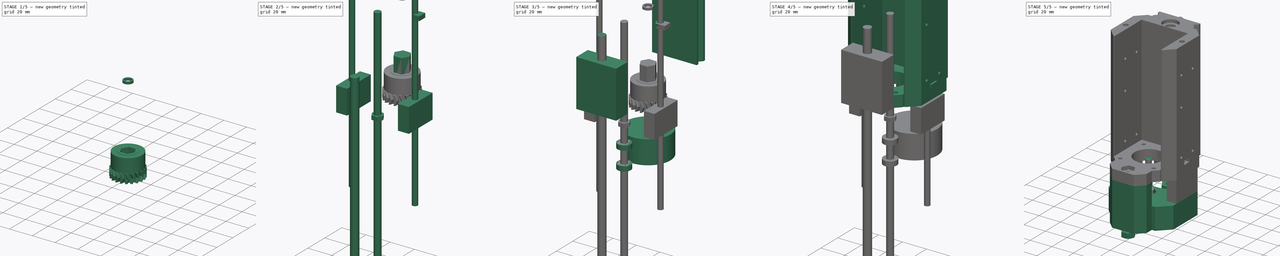
[diagram: build sequence overview — one tinted view per stage of 5, left to right]
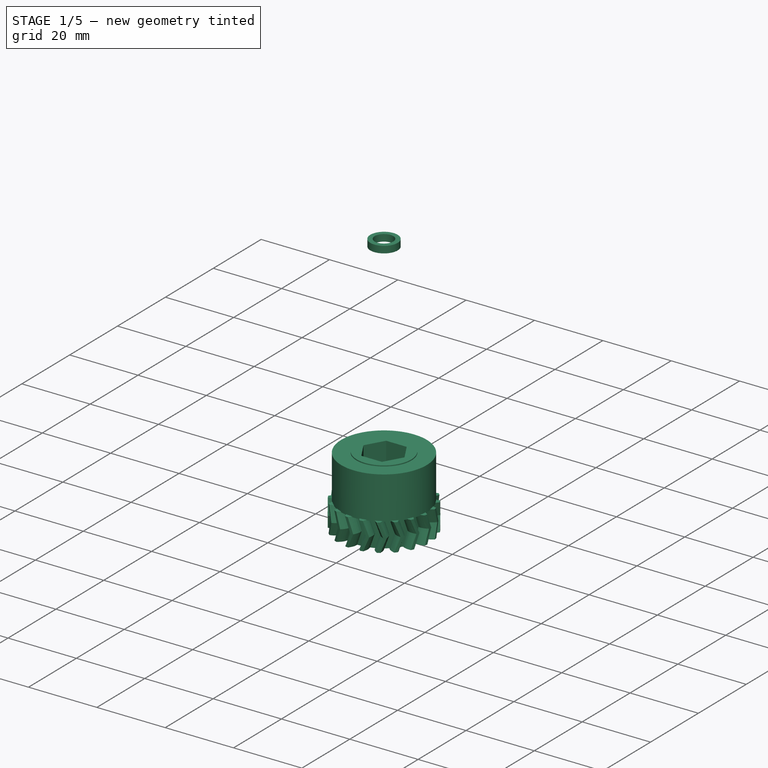
[diagram: stage 1 of 5 — iso view after this stage's code; geometry added in this stage tinted green]
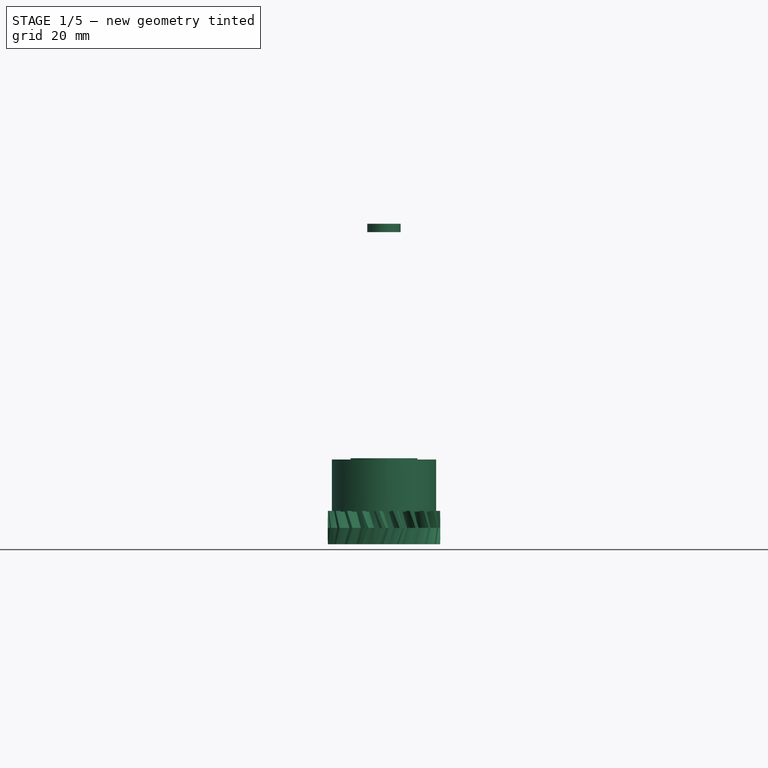
[diagram: stage 1 of 5 — front view after this stage's code; geometry added in this stage tinted green]
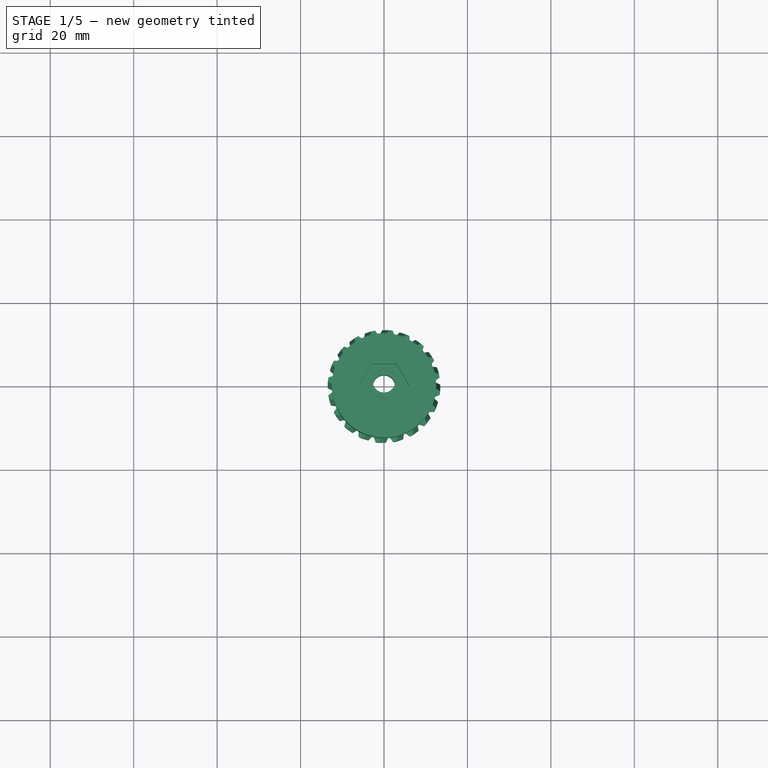
[diagram: stage 1 of 5 — top view after this stage's code; geometry added in this stage tinted green]
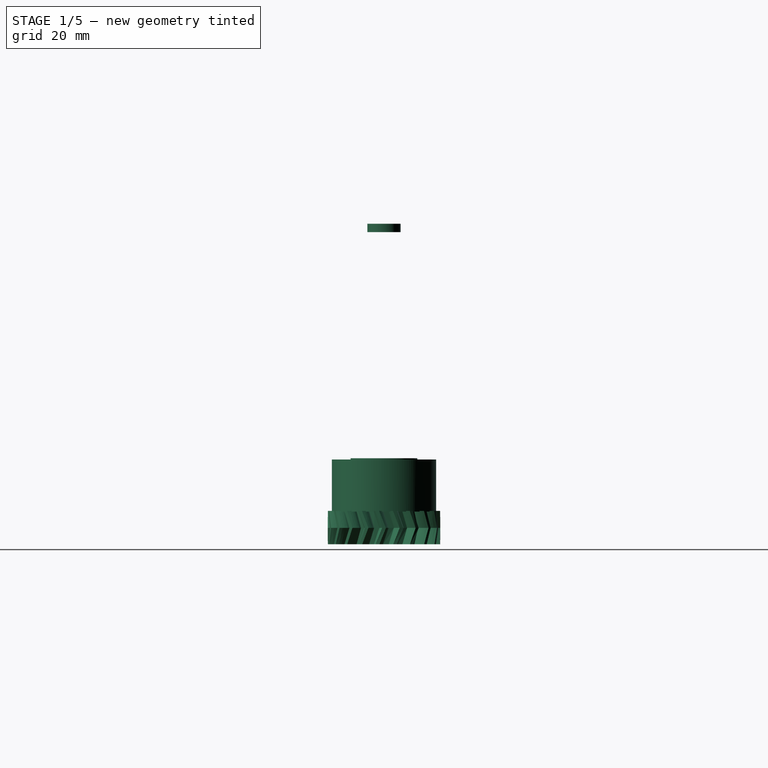
[diagram: stage 1 of 5 — right view after this stage's code; geometry added in this stage tinted green]
FCSTD DOCUMENT  (FreeCAD 0.17R12284 (Git))
Label: prac
License: All rights reserved
LicenseURL: http://en.wikipedia.org/wiki/All_rights_reserved
objects: Part::Cylinder×43, Part::MultiFuse×31, Part::Cut×16, Part::Box×15, Part::Feature×12, Part::FeaturePython×10, Part::Extrusion×9, Sketcher::SketchObject×7, Part::Chamfer×5, App::Part×2, Part::RegularPolygon×2
note: 150 computed .brp shape members not serialized (recipe doc carries the construction recipe); baked Part::Feature solids carry a one-line shape summary decoded from their .brp

FEATURE [Part::RegularPolygon] RegularPolygon009  label="Pravidelný n-úhelník009"
  AttacherType = Attacher::AttachEngine3D
  Circumradius = 6
  Polygon = 6
FEATURE [Part::Extrusion] Extrude067
  Base = -> RegularPolygon009
  Dir = (0,0,1)
  DirMode = 2
  FaceMakerClass = Part::FaceMakerBullseye
  LengthFwd = 8
  LengthRev = 0
  Placement = pos=(0,0,13) rot=(0,0,1;0rad)
  Solid = true
  Symmetric = false
FEATURE [Sketcher::SketchObject] Sketch038
  MapMode = 45
  Placement = pos=(44.88,21.011,5.40003) rot=(0.707106,0.001666,0.707106;3.13826rad)
  sketch-geometry (7):
    g0: LineSegment StartX=5.21891 StartY=0.0364138 StartZ=0 EndX=2.62121 EndY=4.46293 EndZ=0
    g1: LineSegment StartX=2.62121 StartY=4.46293 StartZ=0 EndX=-2.51111 EndY=4.42651 EndZ=0
    g2: LineSegment StartX=-2.51111 StartY=4.42651 StartZ=0 EndX=-5.04574 EndY=-0.0364138 EndZ=0
    g3: LineSegment StartX=-5.04574 StartY=-0.0364138 StartZ=0 EndX=-2.44804 EndY=-4.46293 EndZ=0
    g4: LineSegment StartX=-2.44804 StartY=-4.46293 StartZ=0 EndX=2.68428 EndY=-4.42651 EndZ=0
    g5: LineSegment StartX=2.68428 StartY=-4.42651 StartZ=0 EndX=5.21891 EndY=0.0364138 EndZ=0
    g6: Circle [constr] CenterX=0.0865834 CenterY=0 CenterZ=0 NormalX=0 NormalY=0 NormalZ=1 AngleXU=0 Radius=5.13245
  constraints (14):
    c: Coincident(g0,g1)
    c: Coincident(g1,g2)
    c: Coincident(g2,g3)
    c: Coincident(g3,g4)
    c: Coincident(g4,g5)
    c: Coincident(g5,g0)
    c: Equal(g0, g1-g5) x5
    c: PointOnObject(g0,g6)
    c: PointOnObject(g1,g6)
    c: PointOnObject(g2,g6)
    c: PointOnObject(g3,g6)
    c: PointOnObject(g4,g6)
    c: PointOnObject(g5,g6)
    c: PointOnObject(g6,g-1)
FEATURE [Part::Extrusion] Extrude066
  Base = -> Sketch038
  Dir = (1,0,0)
  DirMode = 2
  FaceMakerClass = Part::FaceMakerBullseye
  LengthFwd = 5
  LengthRev = 0
  Placement = pos=(0,0,0.25) rot=(0,0,1;0rad)
  Solid = true
  Symmetric = false
FEATURE [Part::Feature] Cylinder014005649  label="Válec566"
  Placement = pos=(0,0,0) rot=(0,0,1;2.0944rad)
  shape: bbox 5 x 5 x 7 mm, 3 faces (baked)
FEATURE [Part::Feature] Cylinder014005650  label="Válec567"
  shape: bbox 5 x 5 x 7 mm, 3 faces (baked)
FEATURE [Part::Feature] Screw_solid132  label="M2x4-Screw (Solid)132"
  Placement = pos=(0,0,0) rot=(0,0,1;1.0472rad)
  shape: bbox 3.6 x 3.6 x 4 mm, 12 faces (baked)
FEATURE [Part::Feature] Cylinder014005651  label="Válec568"
  Placement = pos=(0,0,0) rot=(0,0,1;4.18879rad)
  shape: bbox 5 x 5 x 7 mm, 3 faces (baked)
FEATURE [Part::MultiFuse] Fusion393
  Shapes = -> [Cylinder014005651,Cylinder014005650,Cylinder014005649]
FEATURE [Part::Feature] Screw_solid133  label="M2x4-Screw (Solid)133"
  Placement = pos=(0,0,0) rot=(0,0,-1;1.0472rad)
  shape: bbox 3.6 x 3.6 x 4 mm, 12 faces (baked)
FEATURE [Part::Feature] Screw_solid134  label="M2x4-Screw (Solid)134"
  Placement = pos=(0,0,0) rot=(0,0,1;3.14159rad)
  shape: bbox 3.6 x 3.6 x 4 mm, 12 faces (baked)
FEATURE [Part::MultiFuse] Fusion395  label="srouby045"
  Placement = pos=(0,0,0.5) rot=(0,0,1;0rad)
  Shapes = -> [Screw_solid132,Screw_solid133,Screw_solid134]
FEATURE [Part::Cylinder] Cylinder014005652  label="Válec569"
  Angle = 360
  AttacherType = Attacher::AttachEngine3D
  Height = 22
  Radius = 2.6
FEATURE [Part::MultiFuse] Fusion396
  Shapes = -> [Cylinder014005652,Extrude066]
FEATURE [Part::Cylinder] Cylinder014005653  label="Válec570"
  Angle = 360
  AttacherType = Attacher::AttachEngine3D
  Height = 7
  Radius = 2.6
FEATURE [Part::MultiFuse] Fusion392
  Placement = pos=(0,0,1) rot=(0,0,1;0rad)
  Shapes = -> [Fusion393,Cylinder014005653]
FEATURE [Part::Cylinder] Cylinder014005654  label="Válec571"
  Angle = 360
  AttacherType = Attacher::AttachEngine3D
  Height = 6
  Placement = pos=(0,0,7) rot=(0,0,1;0rad)
  Radius = 6.5
FEATURE [Part::Cylinder] Cylinder014005536  label="Unasec vrch027"
  Angle = 360
  AttacherType = Attacher::AttachEngine3D
  Height = 1.5
  Placement = pos=(0,0,5.5) rot=(0,0,1;0rad)
  Radius = 15.5
FEATURE [Part::Cut] Cut061228  label="unasec vrch027"
  Base = -> Cylinder014005536
  Tool = -> Fusion395
FEATURE [Part::Cut] Cut061230  label="Unasec Vrch zaklad027"
  Base = -> Cut061228
  Tool = -> Fusion392
FEATURE [Part::MultiFuse] Fusion394
  Shapes = -> [Cut061230,Cylinder014005654,Extrude067]
FEATURE [Part::Cut] Cut061229  label="unasec top009"
  Base = -> Fusion394
  Placement = pos=(0,0,-42) rot=(1,0,0;3.14159rad)
  Tool = -> Fusion396
FEATURE [Part::Cylinder] Cylinder014005842  label="Válec736"
  Angle = 360
  AttacherType = Attacher::AttachEngine3D
  Height = 12.5
  Placement = pos=(0,0,-68) rot=(0,0,1;0rad)
  Radius = 12.5
FEATURE [Part::Cylinder] Cylinder014005846  label="Válec739"
  Angle = 360
  AttacherType = Attacher::AttachEngine3D
  Height = 20.9
  Placement = pos=(0,0,-76.1) rot=(0,0,1;0rad)
  Radius = 8
FEATURE [Part::FeaturePython] InvoluteGear033  # WARN: FeaturePython — macro-defined, semantics opaque (R4)
  Placement = pos=(0,0,-71.9) rot=(0,0,1;0rad)
  backlash = 0
  beta = -20
  clearance = 0.25
  double_helix = true
  head = 0
  height = 8.2
  module = 1.16
  numpoints = 6
  pressure_angle = 20
  reversed_backlash = false
  shift = 0
  simple = false
  teeth = 20
  undercut = false
FEATURE [Part::Cylinder] Cylinder014005847  label="Válec740"
  Angle = 360
  AttacherType = Attacher::AttachEngine3D
  Height = 2
  Placement = pos=(0,0,-1) rot=(0,0,1;0rad)
  Radius = 4
FEATURE [Part::Cylinder] Cylinder014005848  label="Válec741"
  Angle = 360
  AttacherType = Attacher::AttachEngine3D
  Height = 3
  Placement = pos=(0,0,-1) rot=(0,0,1;0rad)
  Radius = 2.7
FEATURE [Part::Cut] Cut061311  label="podlozka"
  Base = -> Cylinder014005847
  Tool = -> Cylinder014005848
FEATURE [Part::Cylinder] Cylinder014005849  label="Válec742"
  Angle = 360
  AttacherType = Attacher::AttachEngine3D
  Height = 4
  Placement = pos=(0,0,-79.8) rot=(0,0,1;0rad)
  Radius = 15
FEATURE [Part::Cylinder] Cylinder014005841  label="Válec735"
  Angle = 360
  AttacherType = Attacher::AttachEngine3D
  Height = 56
  Placement = pos=(0,0,-84) rot=(0,0,1;0rad)
  Radius = 2.65
FEATURE [Part::MultiFuse] Fusion462
  Shapes = -> [Cylinder014005842,InvoluteGear033,Cylinder014005846]
FEATURE [Part::MultiFuse] Fusion463
  Shapes = -> [Cylinder014005841,Cut061229]
FEATURE [Part::Cut] Cut061312
  Base = -> Fusion462
  Tool = -> Fusion463
FEATURE [Part::Cut] Cut061313
  Base = -> Cut061312
  Tool = -> Cylinder014005849
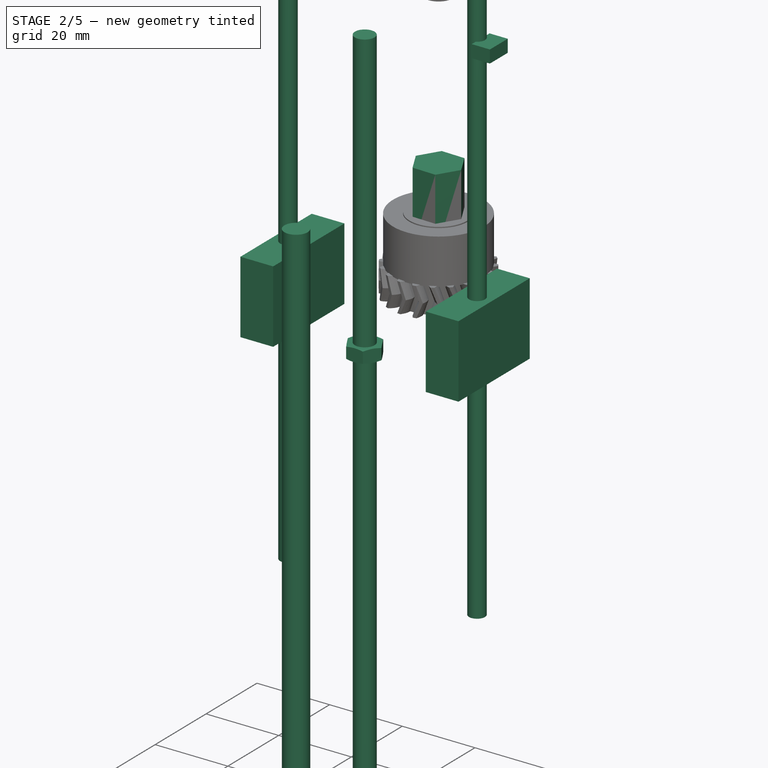
[diagram: stage 2 of 5 — iso view after this stage's code; geometry added in this stage tinted green]
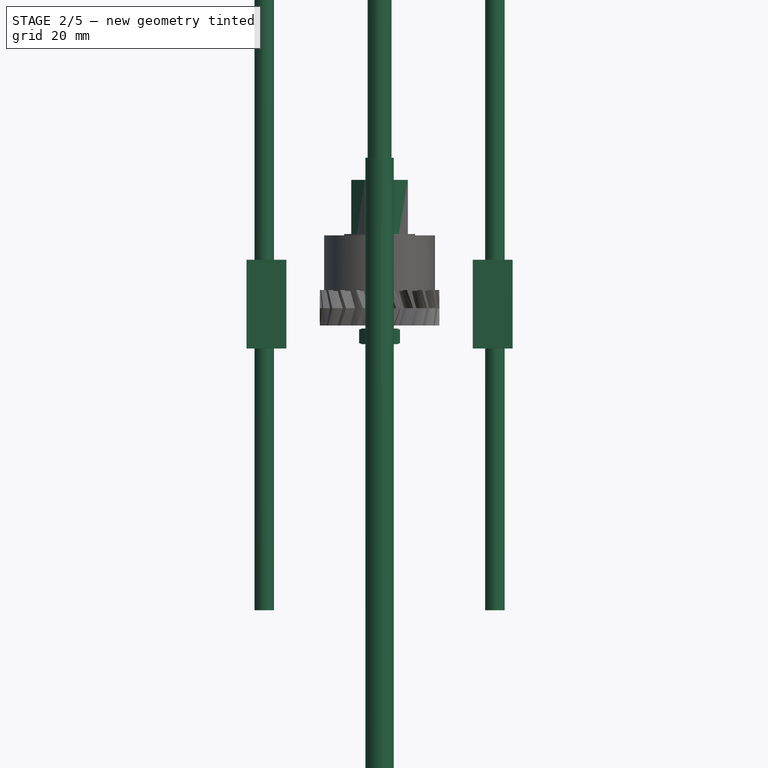
[diagram: stage 2 of 5 — front view after this stage's code; geometry added in this stage tinted green]
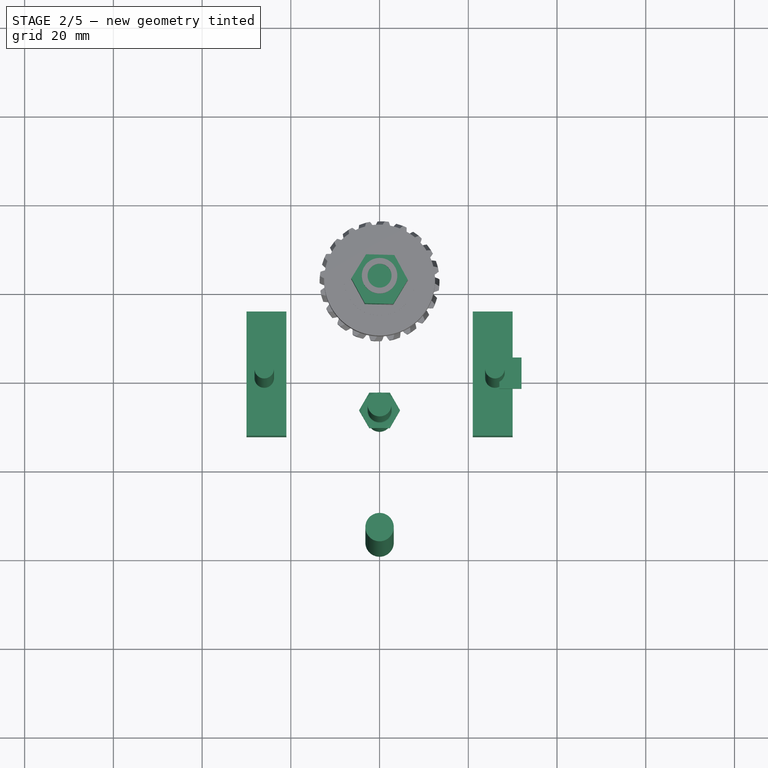
[diagram: stage 2 of 5 — top view after this stage's code; geometry added in this stage tinted green]
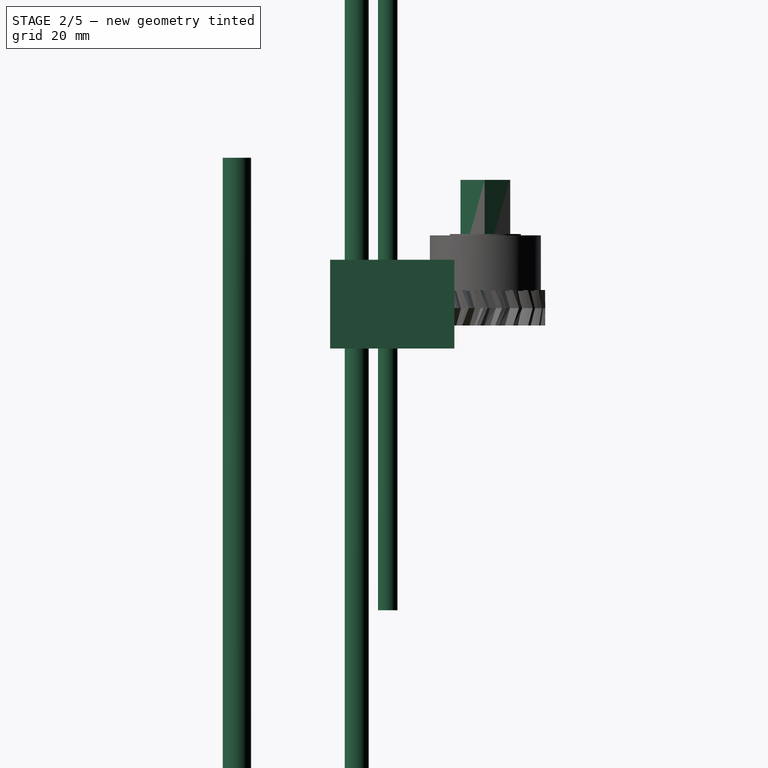
[diagram: stage 2 of 5 — right view after this stage's code; geometry added in this stage tinted green]
FEATURE [Part::Cylinder] Cylinder014005827  label="Válec723"
  Angle = 360
  AttacherType = Attacher::AttachEngine3D
  Height = 200
  Placement = pos=(0,-29,-200) rot=(0,0,1;0rad)
  Radius = 2.7
FEATURE [Part::Box] Box138  label="Krychle125"
  AttacherType = Attacher::AttachEngine3D
  Height = 20
  Length = 9
  Placement = pos=(21,-35,-81) rot=(0,0,1;0rad)
  Width = 28
FEATURE [Part::Cylinder] Cylinder014005831  label="Válec725"
  Angle = 360
  AttacherType = Attacher::AttachEngine3D
  Height = 200
  Placement = pos=(-26,-22,-140) rot=(0,0,1;0rad)
  Radius = 2.2
FEATURE [Part::Cylinder] Cylinder014005833  label="Válec727"
  Angle = 360
  AttacherType = Attacher::AttachEngine3D
  Height = 200
  Placement = pos=(26,-22,-140) rot=(0,0,1;0rad)
  Radius = 2.2
FEATURE [Part::Box] Box137  label="Krychle124"
  AttacherType = Attacher::AttachEngine3D
  Height = 3.5
  Length = 5
  Placement = pos=(27,-25.5,0) rot=(0,0,1;0rad)
  Width = 7
FEATURE [Part::Cylinder] Cylinder014005832  label="Válec726"
  Angle = 360
  AttacherType = Attacher::AttachEngine3D
  Height = 200
  Placement = pos=(-26,-22,-140) rot=(0,0,1;0rad)
  Radius = 2.2
FEATURE [Part::Box] Box139  label="Krychle126"
  AttacherType = Attacher::AttachEngine3D
  Height = 3.5
  Length = 5
  Placement = pos=(27,-25.5,0) rot=(0,0,1;0rad)
  Width = 7
FEATURE [Part::Box] Box136  label="Krychle123"
  AttacherType = Attacher::AttachEngine3D
  Height = 20
  Length = 9
  Placement = pos=(-30,-35,-81) rot=(0,0,1;0rad)
  Width = 28
FEATURE [Part::Cylinder] Cylinder014005834  label="Válec728"
  Angle = 360
  AttacherType = Attacher::AttachEngine3D
  Height = 200
  Placement = pos=(26,-22,-140) rot=(0,0,1;0rad)
  Radius = 2.2
FEATURE [Part::Cylinder] Cylinder014005835  label="Válec729"
  Angle = 360
  AttacherType = Attacher::AttachEngine3D
  Height = 200
  Placement = pos=(0,-56,-238) rot=(0,0,1;0rad)
  Radius = 3.2
FEATURE [Part::FeaturePython] Nut041  label="M5-Nut001"  # Fasteners workbench fastener (typed FeaturePython)
  Placement = pos=(0,-29,-80) rot=(0,0,1;0rad)
  diameter = 7
  invert = false
  matchOuter = false
  offset = 0
  thread = false
  type = 1
FEATURE [App::Part] Part063  label="Asix 1 RA001"
  Group = -> [Nut040,Nut038,Nut041,Screw,Nut035,Fusion416,Fusion417,Fusion418,Fusion423,Fusion436,Fusion437,Nut036,Sketch041,Box120,Cylinder014005660,Cylinder014005661,Cylinder014005662,Cylinder014005663,Cylinder014005664,Box121,Cut061256,Cut061262,Cut061267,Fusion440,Fusion441,Extrude069,Extrude070,Extrude082,Chamfer016,Chamfer017,Chamfer018,Fusion448,Fusion449,Fusion450,Fusion451,Box122,Cylinder014005665,+43 more]
  License = CC BY 3.0
  LicenseURL = http://creativecommons.org/licenses/by/3.0/
  Origin = -> Origin057
FEATURE [Part::Feature] Cylinder014005836  label="Válec730"
  Placement = pos=(0,0,0) rot=(0,0,1;4.18879rad)
  shape: bbox 5 x 5 x 7 mm, 3 faces (baked)
FEATURE [Part::Feature] Screw_solid135  label="M2x4-Screw (Solid)135"
  Placement = pos=(0,0,0) rot=(0,0,1;3.14159rad)
  shape: bbox 3.6 x 3.6 x 4 mm, 12 faces (baked)
FEATURE [Part::Feature] Cylinder014005837  label="Válec731"
  shape: bbox 5 x 5 x 7 mm, 3 faces (baked)
FEATURE [Part::Feature] Cylinder014005838  label="Válec732"
  Placement = pos=(0,0,0) rot=(0,0,1;2.0944rad)
  shape: bbox 5 x 5 x 7 mm, 3 faces (baked)
FEATURE [Part::Feature] Screw_solid136  label="M2x4-Screw (Solid)136"
  Placement = pos=(0,0,0) rot=(0,0,-1;1.0472rad)
  shape: bbox 3.6 x 3.6 x 4 mm, 12 faces (baked)
FEATURE [Part::Feature] Screw_solid137  label="M2x4-Screw (Solid)137"
  Placement = pos=(0,0,0) rot=(0,0,1;1.0472rad)
  shape: bbox 3.6 x 3.6 x 4 mm, 12 faces (baked)
FEATURE [Part::Cylinder] Cylinder014005840  label="Válec734"
  Angle = 360
  AttacherType = Attacher::AttachEngine3D
  Height = 7
  Radius = 2.6
FEATURE [Part::Cylinder] Cylinder014005843  label="Válec737"
  Angle = 360
  AttacherType = Attacher::AttachEngine3D
  Height = 22
  Radius = 2.6
FEATURE [Part::Cylinder] Cylinder014005844  label="Unasec vrch028"
  Angle = 360
  AttacherType = Attacher::AttachEngine3D
  Height = 1.5
  Placement = pos=(0,0,5.5) rot=(0,0,1;0rad)
  Radius = 15.5
FEATURE [Part::Cylinder] Cylinder014005845  label="Válec738"
  Angle = 360
  AttacherType = Attacher::AttachEngine3D
  Height = 6
  Placement = pos=(0,0,7) rot=(0,0,1;0rad)
  Radius = 6.5
FEATURE [Part::MultiFuse] Fusion457  label="srouby046"
  Placement = pos=(0,0,0.5) rot=(0,0,1;0rad)
  Shapes = -> [Screw_solid137,Screw_solid136,Screw_solid135]
FEATURE [Part::Cut] Cut061308  label="unasec vrch028"
  Base = -> Cylinder014005844
  Tool = -> Fusion457
FEATURE [Part::MultiFuse] Fusion459
  Shapes = -> [Cylinder014005836,Cylinder014005837,Cylinder014005838]
FEATURE [Part::MultiFuse] Fusion454
  Placement = pos=(0,0,1) rot=(0,0,1;0rad)
  Shapes = -> [Fusion459,Cylinder014005840]
FEATURE [Part::Cut] Cut061309  label="Unasec Vrch zaklad028"
  Base = -> Cut061308
  Tool = -> Fusion454
FEATURE [Sketcher::SketchObject] Sketch050
  MapMode = 45
  Placement = pos=(44.88,21.011,5.40003) rot=(0.707106,0.001666,0.707106;3.13826rad)
  sketch-geometry (7):
    g0: LineSegment StartX=5.21891 StartY=0.0364138 StartZ=0 EndX=2.62121 EndY=4.46293 EndZ=0
    g1: LineSegment StartX=2.62121 StartY=4.46293 StartZ=0 EndX=-2.51111 EndY=4.42651 EndZ=0
    g2: LineSegment StartX=-2.51111 StartY=4.42651 StartZ=0 EndX=-5.04574 EndY=-0.0364138 EndZ=0
    g3: LineSegment StartX=-5.04574 StartY=-0.0364138 StartZ=0 EndX=-2.44804 EndY=-4.46293 EndZ=0
    g4: LineSegment StartX=-2.44804 StartY=-4.46293 StartZ=0 EndX=2.68428 EndY=-4.42651 EndZ=0
    g5: LineSegment StartX=2.68428 StartY=-4.42651 StartZ=0 EndX=5.21891 EndY=0.0364138 EndZ=0
    g6: Circle [constr] CenterX=0.0865834 CenterY=0 CenterZ=0 NormalX=0 NormalY=0 NormalZ=1 AngleXU=0 Radius=5.13245
  constraints (14):
    c: Coincident(g0,g1)
    c: Coincident(g1,g2)
    c: Coincident(g2,g3)
    c: Coincident(g3,g4)
    c: Coincident(g4,g5)
    c: Coincident(g5,g0)
    c: Equal(g0, g1-g5) x5
    c: PointOnObject(g0,g6)
    c: PointOnObject(g1,g6)
    c: PointOnObject(g2,g6)
    c: PointOnObject(g3,g6)
    c: PointOnObject(g4,g6)
    c: PointOnObject(g5,g6)
    c: PointOnObject(g6,g-1)
FEATURE [Part::Extrusion] Extrude083
  Base = -> Sketch050
  Dir = (1,0,0)
  DirMode = 2
  FaceMakerClass = Part::FaceMakerBullseye
  LengthFwd = 5
  LengthRev = 0
  Placement = pos=(0,0,0.25) rot=(0,0,1;0rad)
  Solid = true
  Symmetric = false
FEATURE [Part::MultiFuse] Fusion458
  Shapes = -> [Cylinder014005843,Extrude083]
FEATURE [Part::RegularPolygon] RegularPolygon010  label="Pravidelný n-úhelník010"
  AttacherType = Attacher::AttachEngine3D
  Circumradius = 6
  Polygon = 6
FEATURE [Part::Extrusion] Extrude084
  Base = -> RegularPolygon010
  Dir = (0,0,1)
  DirMode = 2
  FaceMakerClass = Part::FaceMakerBullseye
  LengthFwd = 8
  LengthRev = 0
  Placement = pos=(0,0,13) rot=(0,0,1;0rad)
  Solid = true
  Symmetric = false
FEATURE [Part::MultiFuse] Fusion455
  Shapes = -> [Cut061309,Cylinder014005845,Extrude084]
FEATURE [Part::Cut] Cut061307  label="unasec top010"
  Base = -> Fusion455
  Placement = pos=(0,0,-42) rot=(1,0,0;3.14159rad)
  Tool = -> Fusion458
FEATURE [Sketcher::SketchObject] Sketch049
  MapMode = 5
  Placement = pos=(0,0,-63) rot=(1,0,0;3.14159rad)
  Support = -> [Cut061307]
  sketch-geometry (7):
    g0: LineSegment StartX=-3.33527 StartY=5.42996 StartZ=0 EndX=-6.37012 EndY=-0.173452 EndZ=0
    g1: LineSegment StartX=-6.37012 StartY=-0.173452 StartZ=0 EndX=-3.03485 EndY=-5.60341 EndZ=0
    g2: LineSegment StartX=-3.03485 StartY=-5.60341 StartZ=0 EndX=3.33527 EndY=-5.42996 EndZ=0
    g3: LineSegment StartX=3.33527 StartY=-5.42996 StartZ=0 EndX=6.37012 EndY=0.173452 EndZ=0
    g4: LineSegment StartX=6.37012 StartY=0.173452 StartZ=0 EndX=3.03485 EndY=5.60341 EndZ=0
    g5: LineSegment StartX=3.03485 StartY=5.60341 StartZ=0 EndX=-3.33527 EndY=5.42996 EndZ=0
    g6: Circle [constr] CenterX=0 CenterY=0 CenterZ=0 NormalX=0 NormalY=0 NormalZ=1 AngleXU=0 Radius=6.37248
  constraints (14):
    c: Coincident(g0,g1)
    c: Coincident(g1,g2)
    c: Coincident(g2,g3)
    c: Coincident(g3,g4)
    c: Coincident(g4,g5)
    c: Coincident(g5,g0)
    c: Equal(g0, g1-g5) x5
    c: PointOnObject(g0,g6)
    c: PointOnObject(g1,g6)
    c: PointOnObject(g2,g6)
    c: PointOnObject(g3,g6)
    c: PointOnObject(g4,g6)
    c: PointOnObject(g5,g6)
    c: Coincident(g6,g-1)
FEATURE [Part::Extrusion] Extrude085
  Base = -> Sketch049
  Dir = (0,0,-1)
  DirMode = 2
  FaceMakerClass = Part::FaceMakerBullseye
  LengthFwd = -20
  LengthRev = 0
  Solid = true
  Symmetric = false
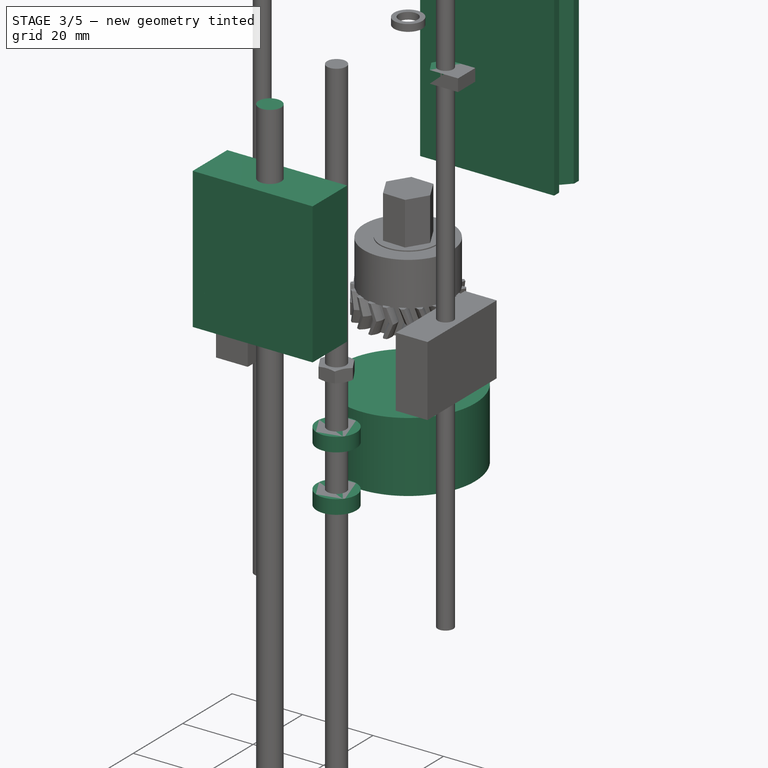
[diagram: stage 3 of 5 — iso view after this stage's code; geometry added in this stage tinted green]
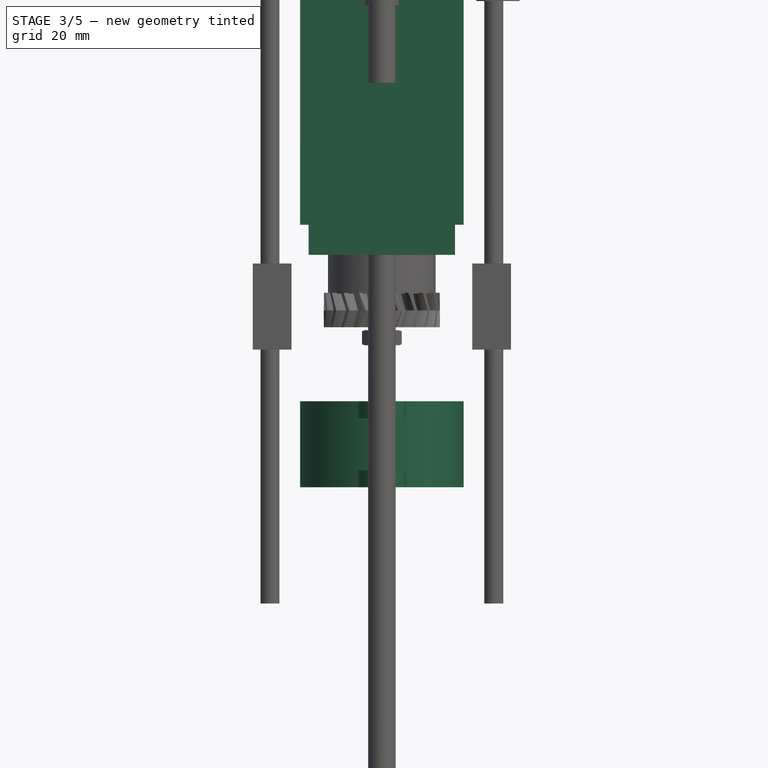
[diagram: stage 3 of 5 — front view after this stage's code; geometry added in this stage tinted green]
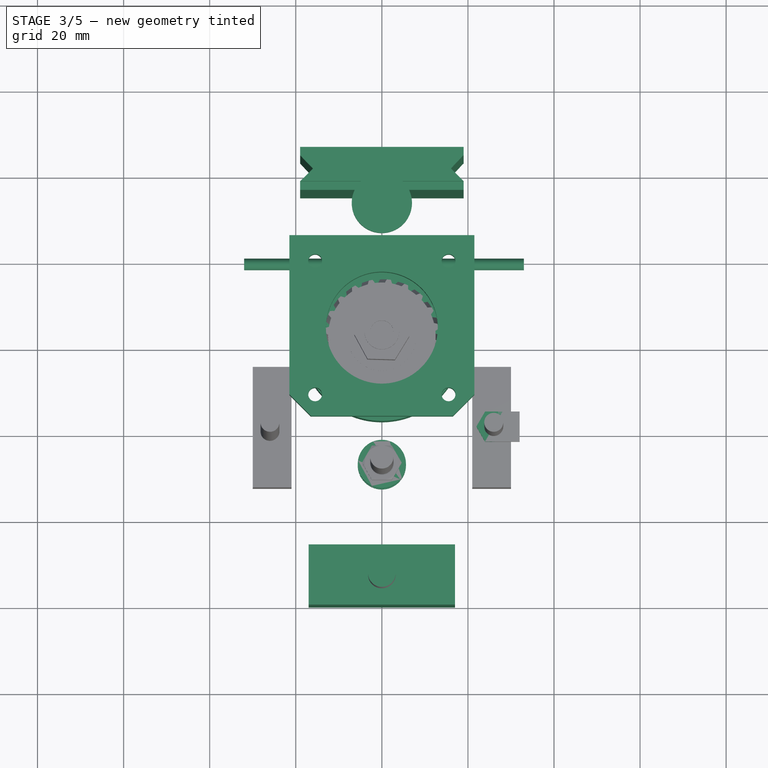
[diagram: stage 3 of 5 — top view after this stage's code; geometry added in this stage tinted green]
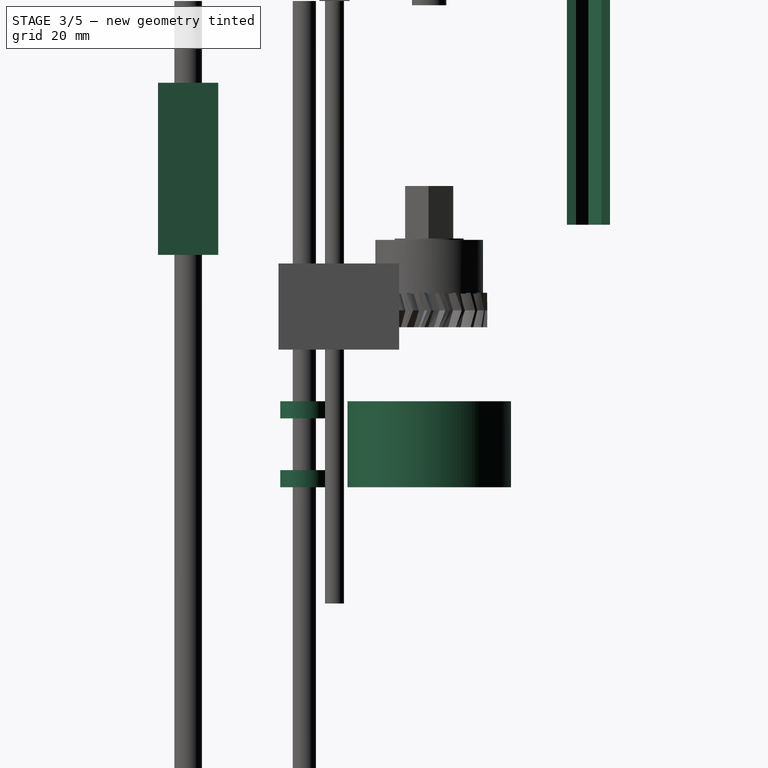
[diagram: stage 3 of 5 — right view after this stage's code; geometry added in this stage tinted green]
FEATURE [Part::FeaturePython] Nut035  label="M4-Nut"  # Fasteners workbench fastener (typed FeaturePython)
  Placement = pos=(26,-22,0) rot=(0,0,1;0rad)
  diameter = 6
  invert = false
  matchOuter = false
  offset = 0
  thread = false
  type = 1
FEATURE [Sketcher::SketchObject] Sketch041
  MapMode = 5
  Placement = pos=(0,0,60) rot=(0,0,1;0rad)
  sketch-geometry (6):
    g0: LineSegment StartX=-18.9734 StartY=34.0308 StartZ=0 EndX=-16.0253 EndY=36.9748 EndZ=0
    g1: LineSegment StartX=18.996 StartY=34.0308 StartZ=0 EndX=16.044 EndY=36.9748 EndZ=0
    g2: LineSegment StartX=18.996 StartY=34.0308 StartZ=0 EndX=-18.9734 EndY=34.0308 EndZ=0
    g3: LineSegment StartX=-18.9734 StartY=40.0311 StartZ=0 EndX=-16.0253 EndY=36.9748 EndZ=0
    g4: LineSegment StartX=16.044 StartY=36.9748 StartZ=0 EndX=18.9109 EndY=40.0311 EndZ=0
    g5: LineSegment StartX=-18.9734 StartY=40.0311 StartZ=0 EndX=18.9109 EndY=40.0311 EndZ=0
  constraints (7):
    c: Coincident(g2,g1)
    c: Coincident(g2,g0)
    c: Horizontal(g2)
    c: Coincident(g3,g0)
    c: Coincident(g5,g3)
    c: Coincident(g5,g4)
    c: Horizontal(g5)
FEATURE [Part::FeaturePython] Nut042  label="M4-Nut018"  # Fasteners workbench fastener (typed FeaturePython)
  Placement = pos=(26,-22,0) rot=(0,0,1;0rad)
  diameter = 6
  invert = false
  matchOuter = false
  offset = 0
  thread = false
  type = 1
FEATURE [Part::Cylinder] Cylinder014005660  label="Válec580"
  Angle = 360
  AttacherType = Attacher::AttachEngine3D
  Height = 50
  Placement = pos=(15.5,15.5,0) rot=(0,0,1;0rad)
  Radius = 1.6
FEATURE [Part::Cylinder] Cylinder014005663  label="dira stred005"
  Angle = 360
  AttacherType = Attacher::AttachEngine3D
  Height = 50
  Radius = 13
FEATURE [Part::Box] Box121  label="Krychle110"
  AttacherType = Attacher::AttachEngine3D
  Height = 112
  Length = 38
  Placement = pos=(-19,34,-52) rot=(0,0,1;0rad)
  Width = 6
FEATURE [Part::Box] Box122  label="Krychle111"
  AttacherType = Attacher::AttachEngine3D
  Height = 112
  Length = 38
  Placement = pos=(-19,32,-52) rot=(0,0,1;0rad)
  Width = 10
FEATURE [Part::Cylinder] Cylinder014005667  label="Válec585"
  Angle = 360
  AttacherType = Attacher::AttachEngine3D
  Height = 50
  Placement = pos=(-15.5,15.5,0) rot=(0,0,1;0rad)
  Radius = 1.6
FEATURE [Part::Cylinder] Cylinder014005666  label="Válec584"
  Angle = 360
  AttacherType = Attacher::AttachEngine3D
  Height = 50
  Placement = pos=(-15.5,-15.5,0) rot=(0,0,1;0rad)
  Radius = 1.6
FEATURE [Part::Cylinder] Cylinder014005668  label="Válec586"
  Angle = 360
  AttacherType = Attacher::AttachEngine3D
  Height = 50
  Placement = pos=(15.5,-15.5,0) rot=(0,0,1;0rad)
  Radius = 1.6
FEATURE [Part::MultiFuse] Fusion450  label="diry012"
  Shapes = -> [Cylinder014005667,Cylinder014005660,Cylinder014005663,Cylinder014005666,Cylinder014005668]
FEATURE [Part::Box] Box126  label="Krychle114"
  AttacherType = Attacher::AttachEngine3D
  Height = 10
  Length = 43
  Placement = pos=(-21.5,-20.5,0) rot=(0,0,1;0rad)
  Width = 42
FEATURE [Part::Chamfer] Chamfer016
  Base = -> Box126
  Edges = 2 edges r=5: [Edge1,Edge5]
FEATURE [Part::Cylinder] Cylinder014005682  label="Lozisko010"
  Angle = 360
  AttacherType = Attacher::AttachEngine3D
  Height = 4
  Placement = pos=(0,29,56) rot=(0,0,1;0rad)
  Radius = 7
FEATURE [Part::Cylinder] Cylinder014005684  label="Válec598"
  Angle = 360
  AttacherType = Attacher::AttachEngine3D
  Height = 65
  Placement = pos=(-32,15,42) rot=(0,1,0;1.5708rad)
  Radius = 1.35
FEATURE [Part::Cut] Cut061267
  Base = -> Box122
  Tool = -> Box121
FEATURE [Part::Cut] Cut061256  label="Horni ucjyt003"
  Base = -> Chamfer016
  Placement = pos=(0,0,49.5) rot=(0,0,1;0rad)
  Tool = -> Fusion450
FEATURE [Part::Extrusion] Extrude082
  Base = -> Sketch041
  Dir = (0,0,1)
  DirMode = 2
  FaceMakerClass = Part::FaceMakerBullseye
  LengthFwd = -112
  LengthRev = 0
  Solid = true
  Symmetric = false
FEATURE [Part::Extrusion] Extrude069
  Base = -> Sketch047
  Dir = (0,0,-1)
  DirMode = 2
  FaceMakerClass = Part::FaceMakerBullseye
  LengthFwd = -3.5
  LengthRev = 0
  Solid = true
  Symmetric = false
FEATURE [Part::Extrusion] Extrude070
  Base = -> Sketch048
  Dir = (0,0,-1)
  DirMode = 2
  FaceMakerClass = Part::FaceMakerBullseye
  LengthFwd = -3.5
  LengthRev = 0
  Solid = true
  Symmetric = false
FEATURE [Part::Cylinder] Cylinder014005829  label="LOZISKO001"
  Angle = 360
  AttacherType = Attacher::AttachEngine3D
  Height = 4
  Placement = pos=(0,-29,-97) rot=(0,0,1;0rad)
  Radius = 5.6
FEATURE [Part::Cylinder] Cylinder014005828  label="Válec724"
  Angle = 360
  AttacherType = Attacher::AttachEngine3D
  Height = 200
  Placement = pos=(0,-56,-200) rot=(0,0,1;0rad)
  Radius = 3.2
FEATURE [Part::Cylinder] Cylinder014005830  label="LOZISKO"
  Angle = 360
  AttacherType = Attacher::AttachEngine3D
  Height = 4
  Placement = pos=(0,-29,-113) rot=(0,0,1;0rad)
  Radius = 5.6
FEATURE [Part::Box] Box140  label="Krychle127"
  AttacherType = Attacher::AttachEngine3D
  Height = 9.5
  Length = 34
  Placement = pos=(-17,-63,-59) rot=(0,0,1;0rad)
  Width = 14
FEATURE [Part::Box] Box135  label="Krychle122"
  AttacherType = Attacher::AttachEngine3D
  Height = 40
  Length = 34
  Placement = pos=(-17,-63,-59) rot=(0,0,1;0rad)
  Width = 14
FEATURE [Part::Cylinder] Cylinder014005826  label="Válec722"
  Angle = 360
  AttacherType = Attacher::AttachEngine3D
  Height = 20
  Placement = pos=(0,0,-113) rot=(0,0,1;0rad)
  Radius = 19
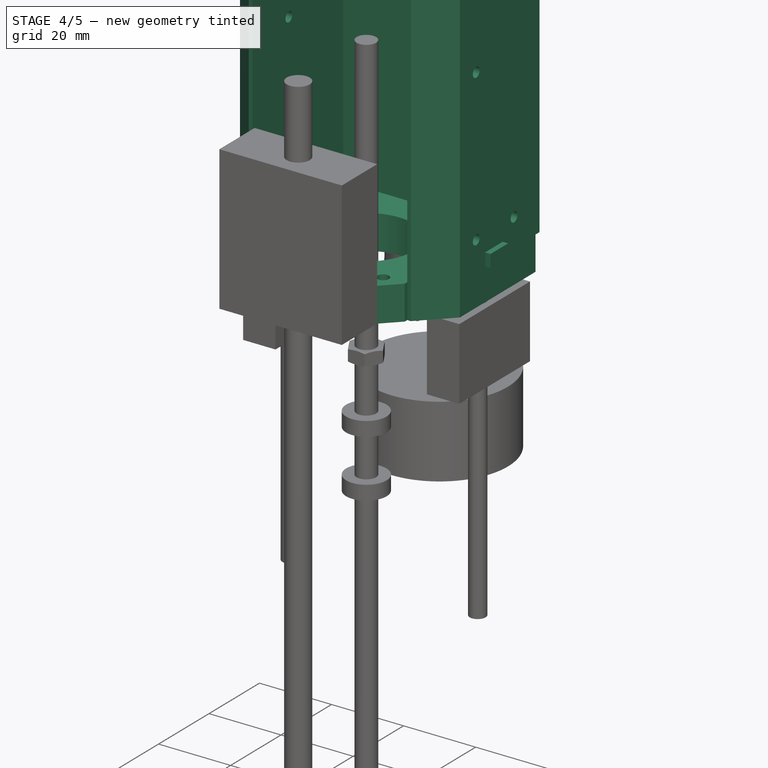
[diagram: stage 4 of 5 — iso view after this stage's code; geometry added in this stage tinted green]
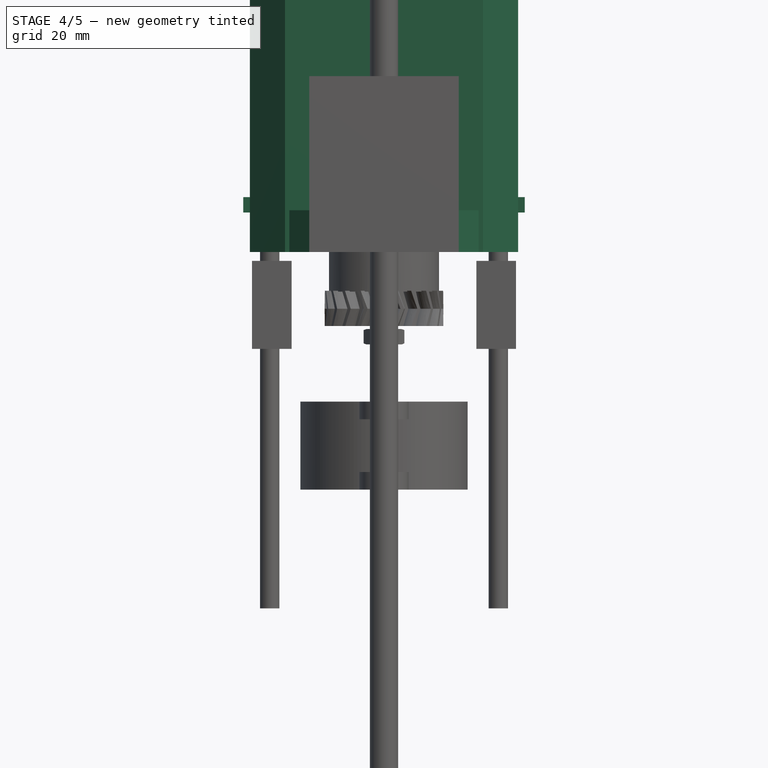
[diagram: stage 4 of 5 — front view after this stage's code; geometry added in this stage tinted green]
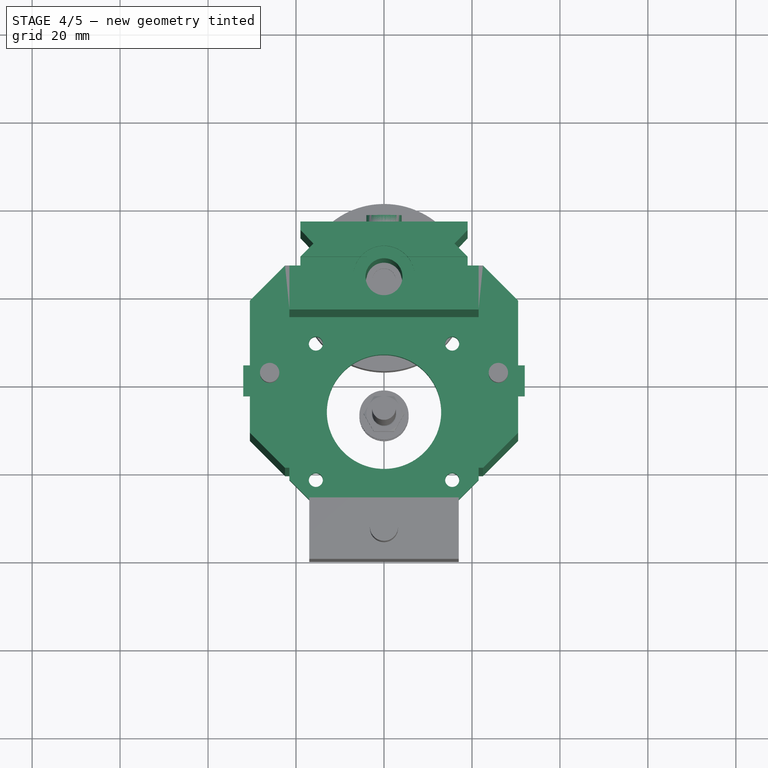
[diagram: stage 4 of 5 — top view after this stage's code; geometry added in this stage tinted green]
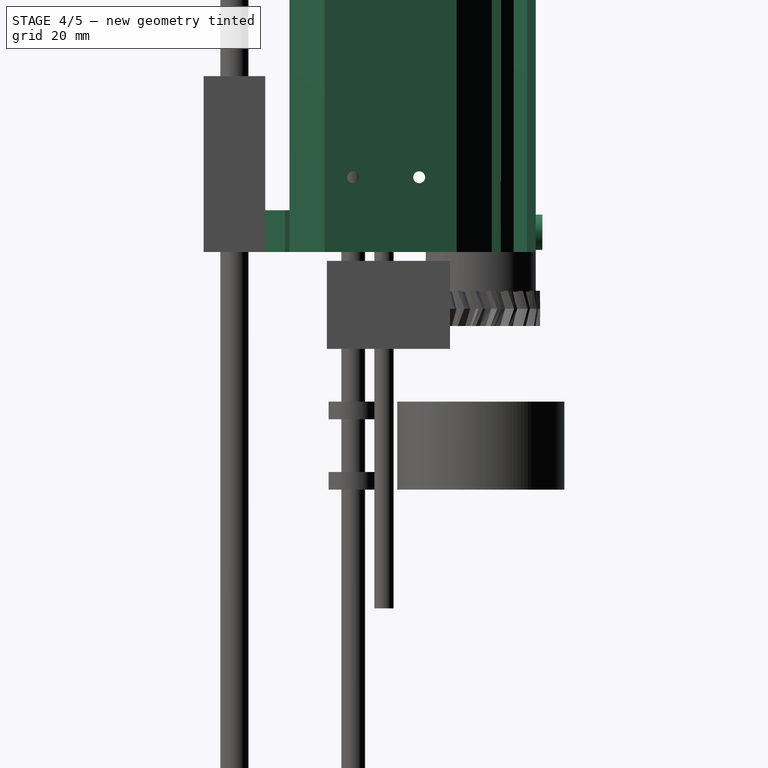
[diagram: stage 4 of 5 — right view after this stage's code; geometry added in this stage tinted green]
FEATURE [Part::FeaturePython] Nut036  label="M6-Nut011"  # Fasteners workbench fastener (typed FeaturePython)
  Placement = pos=(0,-56,-53) rot=(0,0,1;0rad)
  diameter = 8
  invert = false
  matchOuter = false
  offset = 0
  thread = false
  type = 1
FEATURE [Sketcher::SketchObject] Sketch047
  MapMode = 5
  Placement = pos=(26,-22,0) rot=(1,0,0;3.14159rad)
  Support = -> [Nut035]
  sketch-geometry (7):
    g0: LineSegment StartX=2 StartY=3.50262 StartZ=0 EndX=-2.03336 EndY=3.48336 EndZ=0
    g1: LineSegment StartX=-2.03336 StartY=3.48336 StartZ=0 EndX=-4.03336 EndY=-0.0192577 EndZ=0
    g2: LineSegment StartX=-4.03336 StartY=-0.0192577 StartZ=0 EndX=-2 EndY=-3.50262 EndZ=0
    g3: LineSegment StartX=-2 StartY=-3.50262 StartZ=0 EndX=2.03336 EndY=-3.48336 EndZ=0
    g4: LineSegment StartX=2.03336 StartY=-3.48336 StartZ=0 EndX=4.03336 EndY=0.0192577 EndZ=0
    g5: LineSegment StartX=4.03336 StartY=0.0192577 StartZ=0 EndX=2 EndY=3.50262 EndZ=0
    g6: Circle [constr] CenterX=0 CenterY=0 CenterZ=0 NormalX=0 NormalY=0 NormalZ=1 AngleXU=0 Radius=4.0334
  constraints (14):
    c: Coincident(g0,g1)
    c: Coincident(g1,g2)
    c: Coincident(g2,g3)
    c: Coincident(g3,g4)
    c: Coincident(g4,g5)
    c: Coincident(g5,g0)
    c: Equal(g0, g1-g5) x5
    c: PointOnObject(g0,g6)
    c: PointOnObject(g1,g6)
    c: PointOnObject(g2,g6)
    c: PointOnObject(g3,g6)
    c: PointOnObject(g4,g6)
    c: PointOnObject(g5,g6)
    c: Coincident(g6,g-1)
FEATURE [Sketcher::SketchObject] Sketch048
  MapMode = 5
  Placement = pos=(26,-22,0) rot=(1,0,0;3.14159rad)
  Support = -> [Nut042]
  sketch-geometry (7):
    g0: LineSegment StartX=2 StartY=3.50262 StartZ=0 EndX=-2.03336 EndY=3.48336 EndZ=0
    g1: LineSegment StartX=-2.03336 StartY=3.48336 StartZ=0 EndX=-4.03336 EndY=-0.0192577 EndZ=0
    g2: LineSegment StartX=-4.03336 StartY=-0.0192577 StartZ=0 EndX=-2 EndY=-3.50262 EndZ=0
    g3: LineSegment StartX=-2 StartY=-3.50262 StartZ=0 EndX=2.03336 EndY=-3.48336 EndZ=0
    g4: LineSegment StartX=2.03336 StartY=-3.48336 StartZ=0 EndX=4.03336 EndY=0.0192577 EndZ=0
    g5: LineSegment StartX=4.03336 StartY=0.0192577 StartZ=0 EndX=2 EndY=3.50262 EndZ=0
    g6: Circle [constr] CenterX=0 CenterY=0 CenterZ=0 NormalX=0 NormalY=0 NormalZ=1 AngleXU=0 Radius=4.0334
  constraints (14):
    c: Coincident(g0,g1)
    c: Coincident(g1,g2)
    c: Coincident(g2,g3)
    c: Coincident(g3,g4)
    c: Coincident(g4,g5)
    c: Coincident(g5,g0)
    c: Equal(g0, g1-g5) x5
    c: PointOnObject(g0,g6)
    c: PointOnObject(g1,g6)
    c: PointOnObject(g2,g6)
    c: PointOnObject(g3,g6)
    c: PointOnObject(g4,g6)
    c: PointOnObject(g5,g6)
    c: Coincident(g6,g-1)
FEATURE [Part::Box] Box123  label="Krychle112"
  AttacherType = Attacher::AttachEngine3D
  Height = 2
  Length = 80
  Placement = pos=(-40,-30,-53) rot=(0,0,1;0rad)
  Width = 80
FEATURE [Part::Cylinder] Cylinder014005662  label="Válec581"
  Angle = 360
  AttacherType = Attacher::AttachEngine3D
  Height = 10
  Placement = pos=(0,43,-47) rot=(1,0,0;1.5708rad)
  Radius = 4
FEATURE [Part::Cylinder] Cylinder014005664  label="Válec582"
  Angle = 360
  AttacherType = Attacher::AttachEngine3D
  Height = 10
  Placement = pos=(0,43,54.5) rot=(1,0,0;1.5708rad)
  Radius = 4
FEATURE [Part::Box] Box120  label="deska010"
  AttacherType = Attacher::AttachEngine3D
  Height = 111
  Length = 43
  Placement = pos=(-21.5,21.5,-51.5) rot=(0,0,1;0rad)
  Width = 10
FEATURE [Part::Cylinder] Cylinder014005665  label="Válec583"
  Angle = 360
  AttacherType = Attacher::AttachEngine3D
  Height = 65
  Placement = pos=(-32,0,-27) rot=(0,1,0;1.5708rad)
  Radius = 1.35
FEATURE [Part::Cylinder] Cylinder014005661  label="DIRA8,004"
  Angle = 360
  AttacherType = Attacher::AttachEngine3D
  Height = 200
  Placement = pos=(0,29,-100) rot=(0,0,1;0rad)
  Radius = 4.2
FEATURE [Part::Cylinder] Cylinder014005670  label="Lozisko009"
  Angle = 360
  AttacherType = Attacher::AttachEngine3D
  Height = 4
  Placement = pos=(0,29,-52.1) rot=(0,0,1;0rad)
  Radius = 7
FEATURE [Part::Box] Box127  label="deska012"
  AttacherType = Attacher::AttachEngine3D
  Height = 111
  Length = 9
  Placement = pos=(-30.5,-14.5,-51.5) rot=(0,0,1;0rad)
  Width = 46
FEATURE [Part::Box] Box124  label="deska011"
  AttacherType = Attacher::AttachEngine3D
  Height = 111
  Length = 9
  Placement = pos=(21.5,-14.5,-51.5) rot=(0,0,1;0rad)
  Width = 46
FEATURE [Part::Cylinder] Cylinder014005671  label="Válec588"
  Angle = 360
  AttacherType = Attacher::AttachEngine3D
  Height = 65
  Placement = pos=(-32,0,42) rot=(0,1,0;1.5708rad)
  Radius = 1.35
FEATURE [Part::Box] Box125  label="Krychle113"
  AttacherType = Attacher::AttachEngine3D
  Height = 2
  Length = 80
  Placement = pos=(-40,-30,59) rot=(0,0,1;0rad)
  Width = 80
FEATURE [Part::MultiFuse] Fusion449  label="Orez002"
  Shapes = -> [Box125,Box123]
FEATURE [Part::Cylinder] Cylinder014005673  label="Válec590"
  Angle = 360
  AttacherType = Attacher::AttachEngine3D
  Height = 65
  Placement = pos=(-32,15,-27) rot=(0,1,0;1.5708rad)
  Radius = 1.35
FEATURE [Part::Cylinder] Cylinder014005669  label="Válec587"
  Angle = 360
  AttacherType = Attacher::AttachEngine3D
  Height = 65
  Placement = pos=(-32,0,0) rot=(0,1,0;1.5708rad)
  Radius = 1.35
FEATURE [Part::MultiFuse] Fusion451  label="DIRA OSA002"
  Shapes = -> [Cylinder014005661,Cylinder014005670,Cylinder014005682]
FEATURE [Part::MultiFuse] Fusion416  label="diry 2,008"
  Shapes = -> [Cylinder014005684,Cylinder014005669,Cylinder014005671,Cylinder014005665,Cylinder014005673]
FEATURE [Part::MultiFuse] Fusion417  label="Diry orez002"
  Shapes = -> [Fusion416,Fusion451,Fusion449]
FEATURE [Part::MultiFuse] Fusion448  label="motor drazak003"
  Shapes = -> [Cut061256,Box124,Box120,Box127]
FEATURE [Part::MultiFuse] Fusion423  label="Arca plate base013"
  Placement = pos=(0,-0.5,0) rot=(0,0,1;0rad)
  Shapes = -> [Extrude082,Cut061267]
FEATURE [Part::MultiFuse] Fusion418  label="drzak s arca003"
  Shapes = -> [Fusion448,Fusion423,Cylinder014005664,Cylinder014005662]
FEATURE [Part::Cut] Cut061262  label="Blok A002"
  Base = -> Fusion418
  Tool = -> Fusion417
FEATURE [Part::Chamfer] Chamfer017  label="Axis 004"
  Base = -> Cut061262
  Edges = 4 edges r=8: [Edge132,Edge133,Edge152,Edge153]
  Placement = pos=(0,-29,0) rot=(0,1,0;3.14159rad)
FEATURE [Part::Chamfer] Chamfer018  label="Nastavba"
  Base = -> Box140
  Edges = 2 edges r=7: [Edge1,Edge5]
FEATURE [Part::MultiFuse] Fusion437  label="Matka"
  Placement = pos=(0,0,-50) rot=(0,0,1;0rad)
  Shapes = -> [Box137,Nut035,Extrude069]
FEATURE [Part::MultiFuse] Fusion440  label="Matka001"
  Placement = pos=(0,-44,-50) rot=(0,0,1;3.14159rad)
  Shapes = -> [Box139,Nut042,Extrude070]
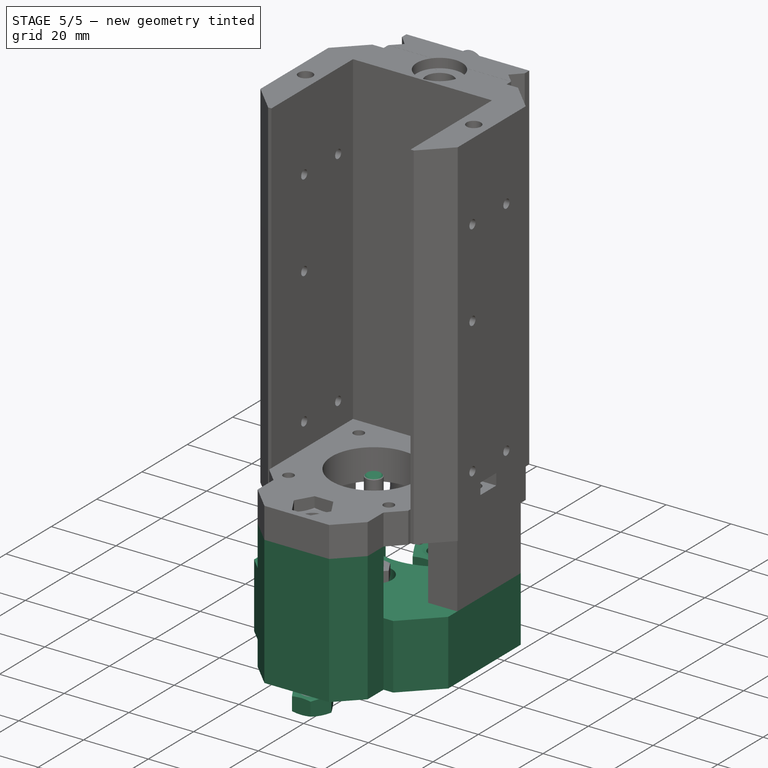
[diagram: stage 5 of 5 — iso view after this stage's code; geometry added in this stage tinted green]
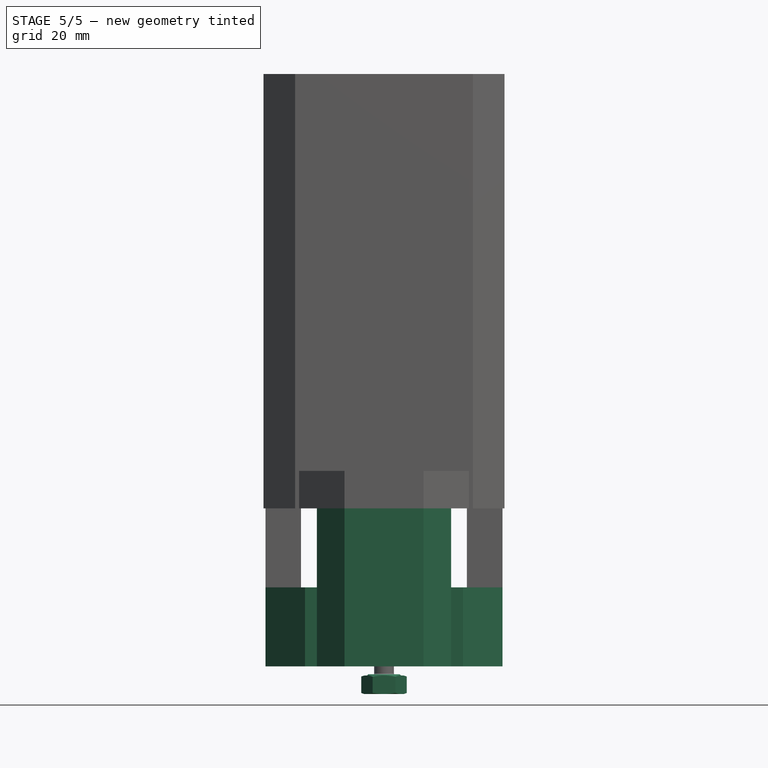
[diagram: stage 5 of 5 — front view after this stage's code; geometry added in this stage tinted green]
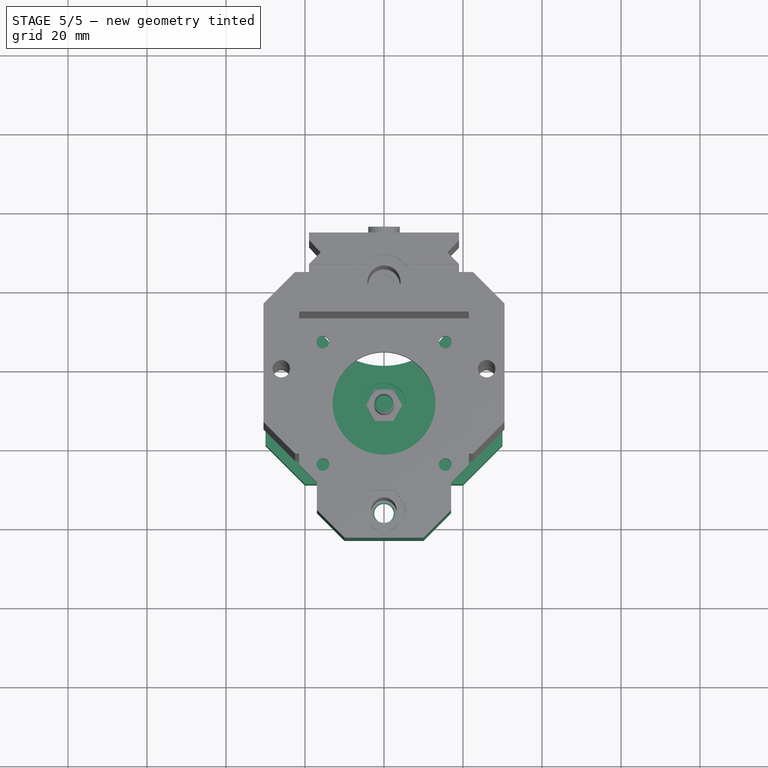
[diagram: stage 5 of 5 — top view after this stage's code; geometry added in this stage tinted green]
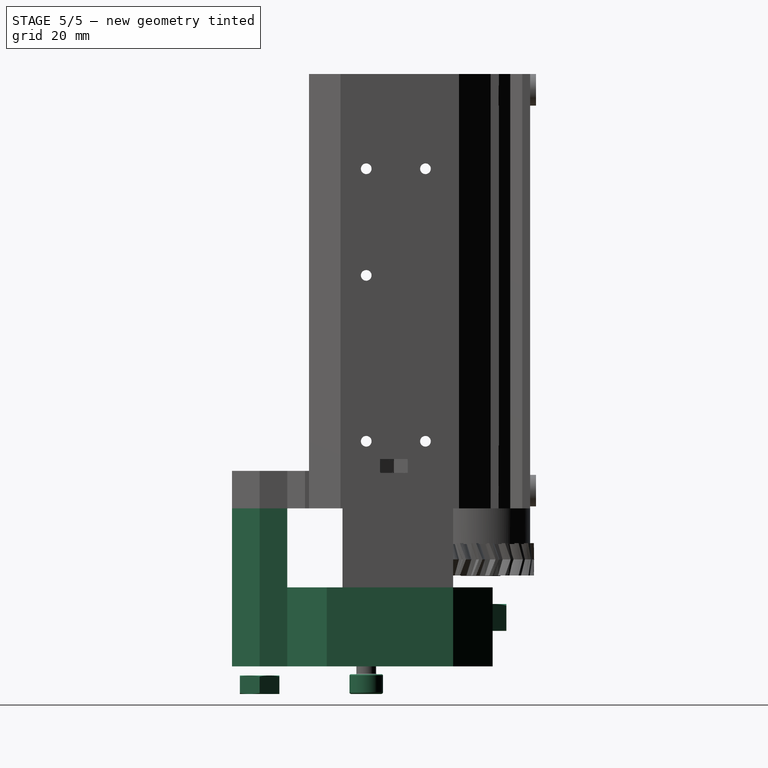
[diagram: stage 5 of 5 — right view after this stage's code; geometry added in this stage tinted green]
FEATURE [App::Part] Part035  label="Pinion20 A001"
  License = CC BY 3.0
  LicenseURL = http://creativecommons.org/licenses/by/3.0/
  Origin = -> Origin035
  Placement = pos=(0,-29,0) rot=(0,0,1;0.017453rad)
FEATURE [Part::FeaturePython] InvoluteGear032  # WARN: FeaturePython — macro-defined, semantics opaque (R4)
  Placement = pos=(0,0,-71.9) rot=(0,0,1;0rad)
  backlash = 0
  beta = -20
  clearance = 0.25
  double_helix = true
  head = 0
  height = 8.2
  module = 1.16
  numpoints = 6
  pressure_angle = 20
  reversed_backlash = false
  shift = 0
  simple = false
  teeth = 20
  undercut = false
FEATURE [Part::Cylinder] Cylinder014005655  label="Válec572"
  Angle = 360
  AttacherType = Attacher::AttachEngine3D
  Height = 55
  Placement = pos=(0,0,-84) rot=(0,0,1;0rad)
  Radius = 2.65
FEATURE [Part::Cylinder] Cylinder014005656  label="Válec573"
  Angle = 360
  AttacherType = Attacher::AttachEngine3D
  Height = 15
  Placement = pos=(0,0,-76.1) rot=(0,0,1;0rad)
  Radius = 5
FEATURE [Part::Cylinder] Cylinder014005657  label="Válec574"
  Angle = 360
  AttacherType = Attacher::AttachEngine3D
  Height = 12.5
  Placement = pos=(0,0,-68) rot=(0,0,1;0rad)
  Radius = 12.5
FEATURE [Part::MultiFuse] Fusion398
  Shapes = -> [Cylinder014005656,Cylinder014005657,InvoluteGear032]
FEATURE [Part::FeaturePython] Nut  label="M5-Nut"  # Fasteners workbench fastener (typed FeaturePython)
  Placement = pos=(0,0,-77) rot=(0,0,1;0rad)
  diameter = 7
  invert = false
  matchOuter = false
  offset = 0
  thread = false
  type = 1
FEATURE [Sketcher::SketchObject] Sketch
  MapMode = 5
  Placement = pos=(0,0,-63) rot=(1,0,0;3.14159rad)
  Support = -> [Cut061229]
  sketch-geometry (7):
    g0: LineSegment StartX=-3.33527 StartY=5.42996 StartZ=0 EndX=-6.37012 EndY=-0.173452 EndZ=0
    g1: LineSegment StartX=-6.37012 StartY=-0.173452 StartZ=0 EndX=-3.03485 EndY=-5.60341 EndZ=0
    g2: LineSegment StartX=-3.03485 StartY=-5.60341 StartZ=0 EndX=3.33527 EndY=-5.42996 EndZ=0
    g3: LineSegment StartX=3.33527 StartY=-5.42996 StartZ=0 EndX=6.37012 EndY=0.173452 EndZ=0
    g4: LineSegment StartX=6.37012 StartY=0.173452 StartZ=0 EndX=3.03485 EndY=5.60341 EndZ=0
    g5: LineSegment StartX=3.03485 StartY=5.60341 StartZ=0 EndX=-3.33527 EndY=5.42996 EndZ=0
    g6: Circle [constr] CenterX=0 CenterY=0 CenterZ=0 NormalX=0 NormalY=0 NormalZ=1 AngleXU=0 Radius=6.37248
  constraints (14):
    c: Coincident(g0,g1)
    c: Coincident(g1,g2)
    c: Coincident(g2,g3)
    c: Coincident(g3,g4)
    c: Coincident(g4,g5)
    c: Coincident(g5,g0)
    c: Equal(g0, g1-g5) x5
    c: PointOnObject(g0,g6)
    c: PointOnObject(g1,g6)
    c: PointOnObject(g2,g6)
    c: PointOnObject(g3,g6)
    c: PointOnObject(g4,g6)
    c: PointOnObject(g5,g6)
    c: Coincident(g6,g-1)
FEATURE [Part::Extrusion] Extrude
  Base = -> Sketch
  Dir = (0,0,-1)
  DirMode = 2
  FaceMakerClass = Part::FaceMakerBullseye
  LengthFwd = -20
  LengthRev = 0
  Solid = true
  Symmetric = false
FEATURE [Part::MultiFuse] Fusion399
  Shapes = -> [Extrude,Nut,Cylinder014005655]
FEATURE [Part::Cylinder] Cylinder  label="Válec"
  Angle = 360
  AttacherType = Attacher::AttachEngine3D
  Height = 10
  Placement = pos=(0,0,-76) rot=(0,0,1;0rad)
  Radius = 8
FEATURE [Part::MultiFuse] Fusion
  Shapes = -> [Fusion398,Cylinder]
FEATURE [Part::Cut] Cut  label="Pinon"
  Base = -> Fusion
  Tool = -> Fusion399
FEATURE [Part::FeaturePython] Screw  label="M5x50-Screw"  # Fasteners workbench fastener (typed FeaturePython)
  Placement = pos=(0,-29,-101) rot=(0,1,0;3.14159rad)
  diameter = 5
  invert = false
  length = 10
  matchOuter = false
  offset = 0
  thread = false
  type = 5
FEATURE [Part::FeaturePython] Nut038  label="M8-Nut008"  # Fasteners workbench fastener (typed FeaturePython)
  Placement = pos=(0,0,-90) rot=(0,0,1;0rad)
  diameter = 9
  invert = false
  matchOuter = false
  offset = 0
  thread = false
  type = 1
FEATURE [Part::FeaturePython] Nut040  label="M6-Nut001"  # Fasteners workbench fastener (typed FeaturePython)
  Placement = pos=(0,-56,-106) rot=(0,0,1;0rad)
  diameter = 8
  invert = false
  matchOuter = false
  offset = 0
  thread = false
  type = 1
FEATURE [Part::Box] Box119  label="Krychle109"
  AttacherType = Attacher::AttachEngine3D
  Height = 20
  Length = 60
  Placement = pos=(-30,-49,-59) rot=(0,0,1;0rad)
  Width = 52
FEATURE [Part::Chamfer] Chamfer019
  Base = -> Box119
  Edges = 4 edges r=10: [Edge1,Edge3,Edge5,Edge7]
FEATURE [Part::MultiFuse] Fusion441
  Shapes = -> [Chamfer018,Chamfer017]
FEATURE [Part::Chamfer] Chamfer015  label="Nastavba002"
  Base = -> Box135
  Edges = 2 edges r=7: [Edge1,Edge5]
FEATURE [Part::MultiFuse] Fusion438  label="celo"
  Placement = pos=(0,0,-54) rot=(0,0,1;0rad)
  Shapes = -> [Chamfer015,Chamfer019]
FEATURE [Part::MultiFuse] Fusion442
  Shapes = -> [Cylinder014005830,Cylinder014005829,Cylinder014005827,Cylinder014005826,Cylinder014005828]
FEATURE [Part::Cut] Cut061241  label="Celo"
  Base = -> Fusion438
  Placement = pos=(0,0,12) rot=(0,0,1;0rad)
  Tool = -> Fusion442
FEATURE [Part::MultiFuse] Fusion435
  Shapes = -> [Cylinder014005833,Cylinder014005832]
FEATURE [Part::MultiFuse] Fusion434
  Shapes = -> [Cut061241,Box138,Box136]
FEATURE [Part::Cut] Cut061305  label="CeloFin"
  Base = -> Fusion434
  Placement = pos=(0,0,2) rot=(0,0,1;0rad)
  Tool = -> Fusion435
FEATURE [Part::MultiFuse] Fusion436
  Shapes = -> [Cylinder014005834,Nut036,Cylinder014005835,Cylinder014005831,Fusion437,Fusion440]
FEATURE [Part::Cut] Cut061306  label="AXIS1"
  Base = -> Fusion441
  Tool = -> Fusion436
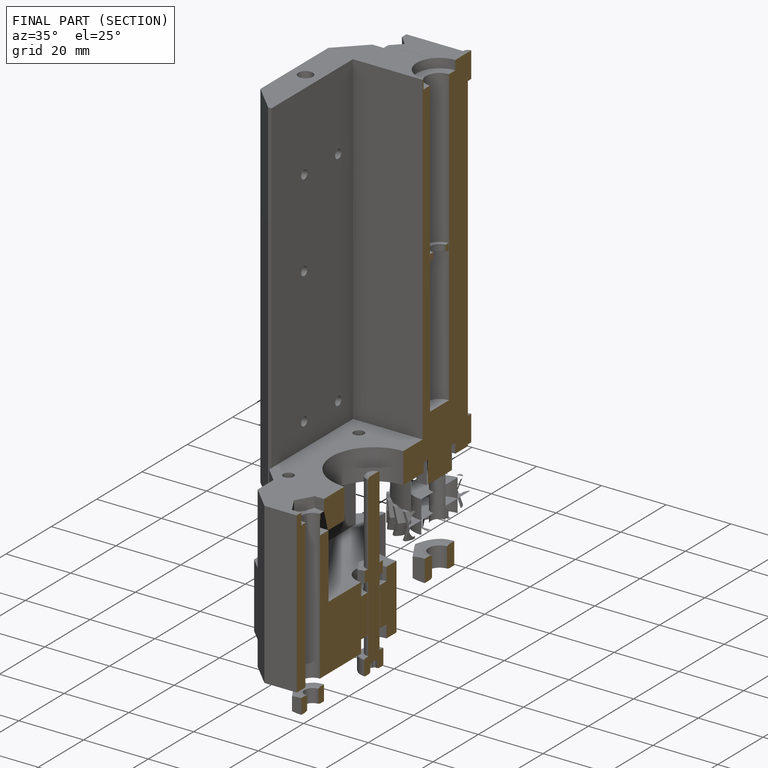
[diagram: finished part — half-section view (interior)]
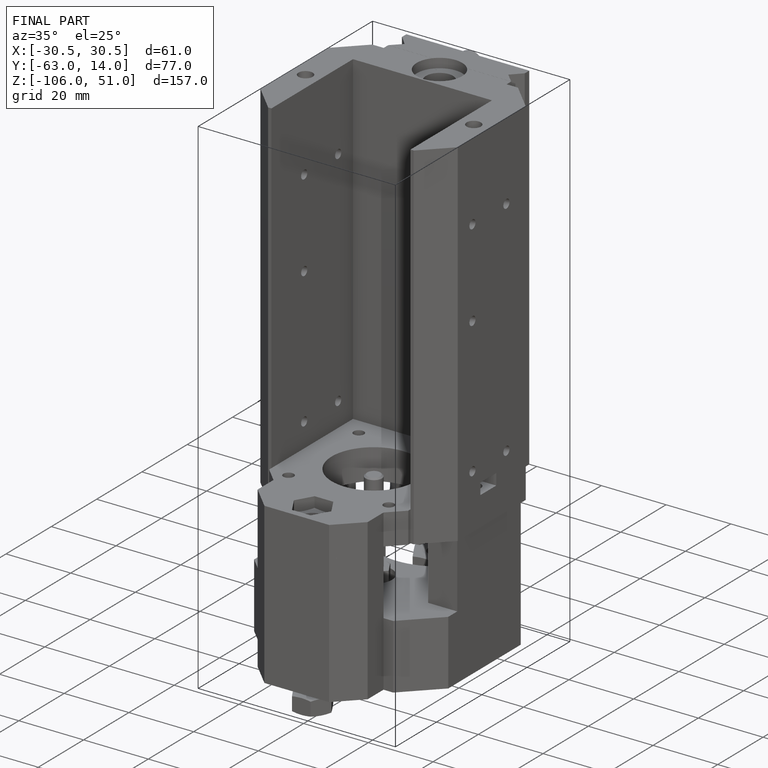
[diagram: finished part — iso view with bounding-box wireframe]
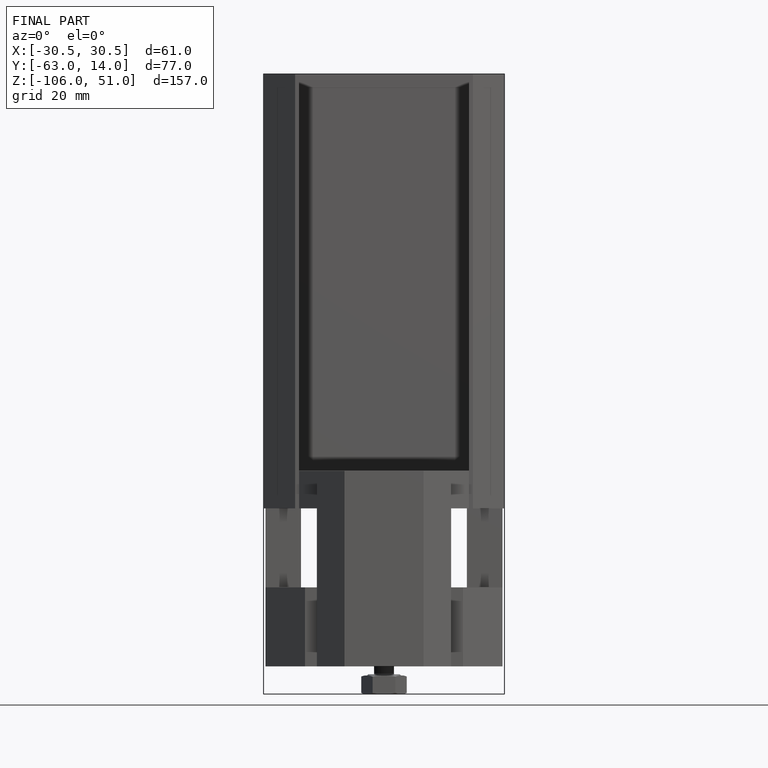
[diagram: finished part — front view with bounding-box wireframe]
